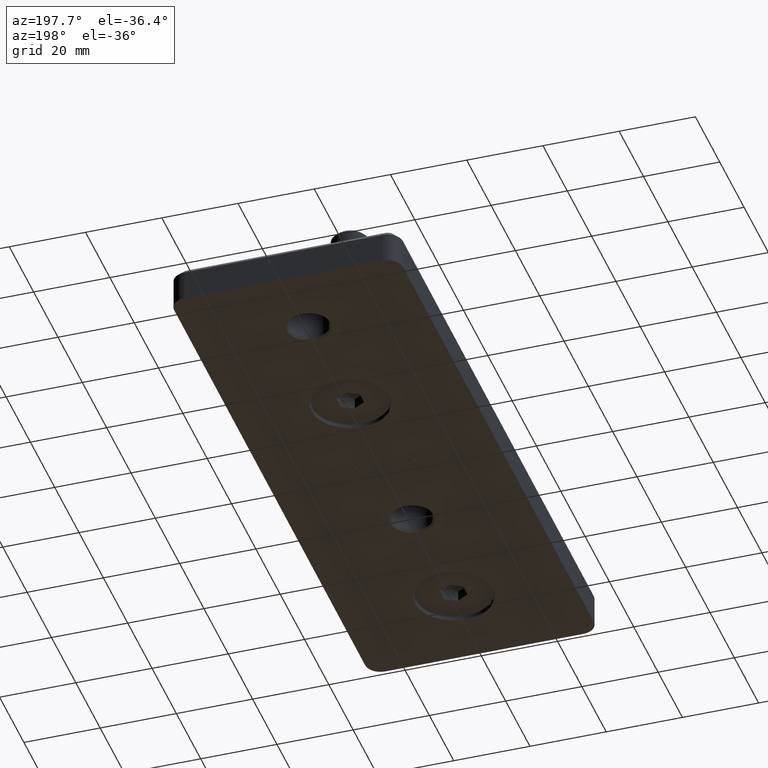
[diagram: clean part render]
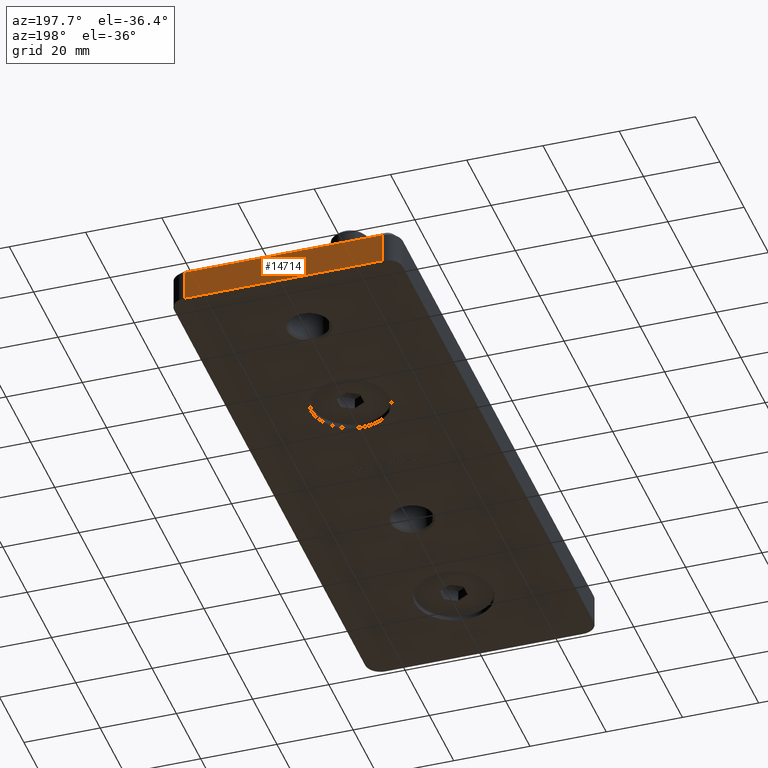
[diagram: same view with one face highlighted and labeled with its STEP entity id]
A machine part, auxiliary view. The second image highlights one B-rep face of the part: STEP entity #14714.
In plain terms, the highlighted planar face has unit normal (0, -1, 0).
Its self-contained STEP definition (entity closure, byte-faithful):
#996 = CARTESIAN_POINT ( 'NONE',  ( 26.00000000000000000, 82.50000000000000000, 0.000000000000000000 ) ) ;
#1035 = CARTESIAN_POINT ( 'NONE',  ( 26.00000000000000000, 82.50000000000000000, 10.00000000000000000 ) ) ;
#1293 = VECTOR ( 'NONE', #16209, 1000.000000000000000 ) ;
#1695 = FACE_OUTER_BOUND ( 'NONE', #9539, .T. ) ;
#3746 = VECTOR ( 'NONE', #18207, 1000.000000000000000 ) ;
#3761 = CARTESIAN_POINT ( 'NONE',  ( 30.00000000000000000, 82.50000000000000000, 10.00000000000000000 ) ) ;
#5756 = VERTEX_POINT ( 'NONE', #13791 ) ;
#6483 = ORIENTED_EDGE ( 'NONE', *, *, #8212, .T. ) ;
#6669 = PLANE ( 'NONE',  #13078 ) ;
#7144 = ORIENTED_EDGE ( 'NONE', *, *, #7808, .T. ) ;
#7509 = EDGE_CURVE ( 'NONE', #14874, #5756, #14387, .T. ) ;
#7808 = EDGE_CURVE ( 'NONE', #5756, #19300, #9697, .T. ) ;
#8202 = CARTESIAN_POINT ( 'NONE',  ( -25.99999999999999645, 82.50000000000000000, 10.00000000000000000 ) ) ;
#8212 = EDGE_CURVE ( 'NONE', #14807, #14874, #16580, .T. ) ;
#8262 = DIRECTION ( 'NONE',  ( 0.000000000000000000, -1.000000000000000000, 0.000000000000000000 ) ) ;
#9539 = EDGE_LOOP ( 'NONE', ( #7144, #14338, #6483, #18819 ) ) ;
#9697 = LINE ( 'NONE', #8202, #1293 ) ;
#10035 = CARTESIAN_POINT ( 'NONE',  ( -25.99999999999999645, 82.50000000000000000, 7.999999999999984901 ) ) ;
#10069 = DIRECTION ( 'NONE',  ( 0.000000000000000000, -0.000000000000000000, -1.000000000000000000 ) ) ;
#11663 = VECTOR ( 'NONE', #16975, 1000.000000000000000 ) ;
#11730 = CARTESIAN_POINT ( 'NONE',  ( 26.00000000000000000, 82.50000000000000000, 7.999999999999984901 ) ) ;
#13078 = AXIS2_PLACEMENT_3D ( 'NONE', #3761, #8262, #10069 ) ;
#13791 = CARTESIAN_POINT ( 'NONE',  ( -25.99999999999999645, 82.50000000000000000, 0.000000000000000000 ) ) ;
#14338 = ORIENTED_EDGE ( 'NONE', *, *, #18615, .T. ) ;
#14387 = LINE ( 'NONE', #16421, #3746 ) ;
#14714 = ADVANCED_FACE ( 'NONE', ( #1695 ), #6669, .F. ) ;
#14807 = VERTEX_POINT ( 'NONE', #11730 ) ;
#14874 = VERTEX_POINT ( 'NONE', #996 ) ;
#16209 = DIRECTION ( 'NONE',  ( -0.000000000000000000, -0.000000000000000000, 1.000000000000000000 ) ) ;
#16421 = CARTESIAN_POINT ( 'NONE',  ( 30.00000000000000000, 82.50000000000000000, 0.000000000000000000 ) ) ;
#16432 = LINE ( 'NONE', #17422, #18932 ) ;
#16580 = LINE ( 'NONE', #1035, #11663 ) ;
#16975 = DIRECTION ( 'NONE',  ( 0.000000000000000000, 0.000000000000000000, -1.000000000000000000 ) ) ;
#17148 = DIRECTION ( 'NONE',  ( 1.000000000000000000, 0.000000000000000000, 0.000000000000000000 ) ) ;
#17422 = CARTESIAN_POINT ( 'NONE',  ( 26.00000000000000000, 82.50000000000000000, 7.999999999999998224 ) ) ;
#18207 = DIRECTION ( 'NONE',  ( -1.000000000000000000, 0.000000000000000000, 0.000000000000000000 ) ) ;
#18615 = EDGE_CURVE ( 'NONE', #19300, #14807, #16432, .T. ) ;
#18819 = ORIENTED_EDGE ( 'NONE', *, *, #7509, .T. ) ;
#18932 = VECTOR ( 'NONE', #17148, 1000.000000000000000 ) ;
#19300 = VERTEX_POINT ( 'NONE', #10035 ) ;